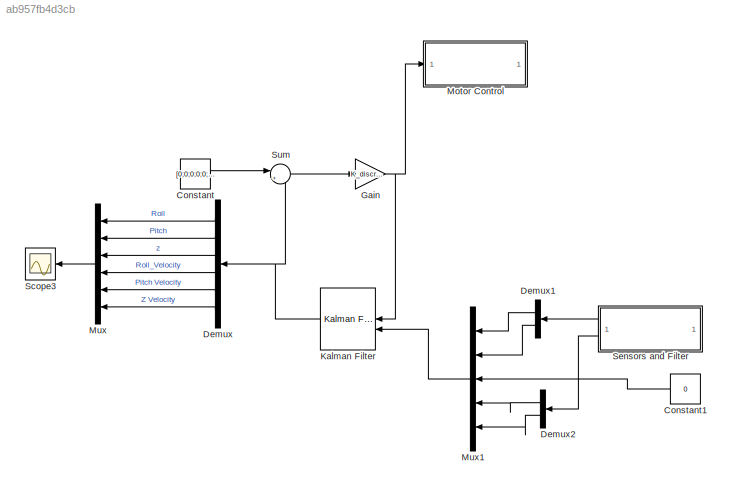
MODEL slx_ab957fb4d3cb
KIND model
CONFIG AbsTol = auto
CONFIG EnableMultiTasking = on
CONFIG FixedStep = 0.02
CONFIG InitFcn = Stages = 0;\n% Stage 0 means that it is initializing\n% Stage 1 means that 
CONFIG MaxStep = auto
CONFIG MinStep = auto
CONFIG RelTol = 1e-3
CONFIG SampleTimeConstraint = Unconstrained
CONFIG SolverName = FixedStepAuto
CONFIG StartTime = 0.0
CONFIG StopTime = inf
BLOCK [Constant] Constant
  Value = [0;0;0;0;0;0]
BLOCK [Constant] Constant1
  Value = 0
BLOCK [Demux] Demux
  Outputs = 6
BLOCK [Demux] Demux1
  Outputs = 2
BLOCK [Demux] Demux2
  Outputs = 2
BLOCK [Gain] Gain
  Gain = K_discrete
  Multiplication = Matrix(K*u)
BLOCK [Reference] Kalman Filter  REF=ctrlSharedLib/Kalman Filter
  LibrarySourceBlock = cstblocks/State Estimation/Kalman Filter
  SourceBlock = ctrlSharedLib/Kalman Filter
  SourceType = ctrlKalmanFilter
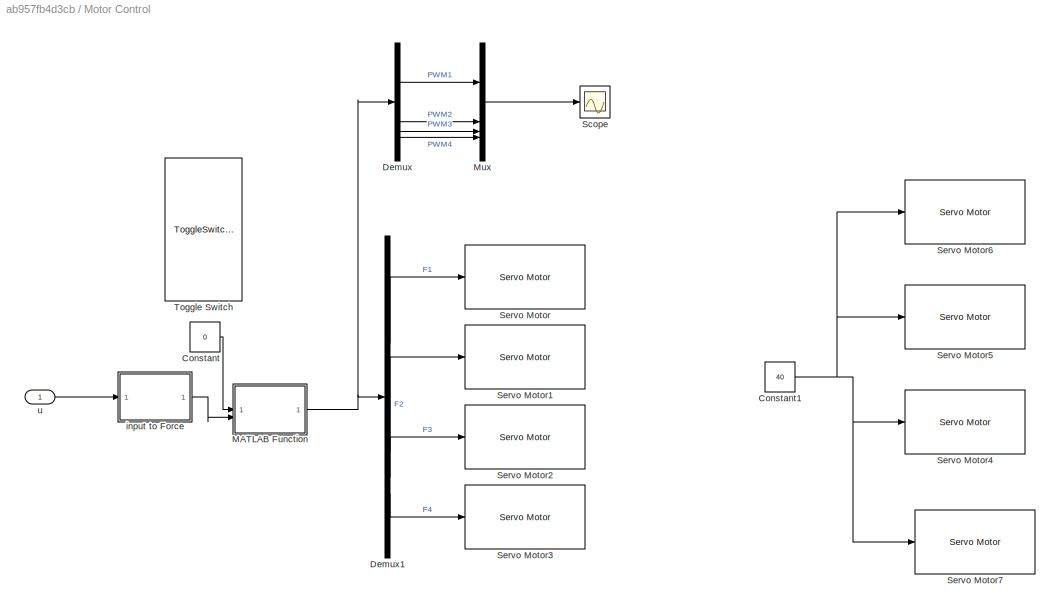
BLOCK [SubSystem] Motor Control
BLOCK [Constant] Motor Control/Constant
  Value = 0
BLOCK [Constant] Motor Control/Constant1
  Commented = on
  Value = 40
BLOCK [Demux] Motor Control/Demux
BLOCK [Demux] Motor Control/Demux1
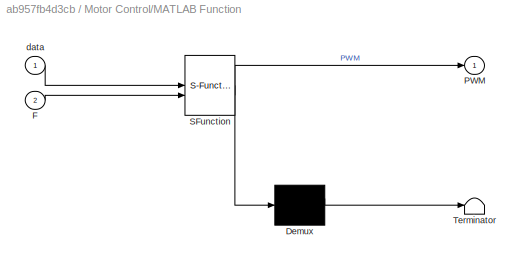
BLOCK [SubSystem] Motor Control/MATLAB Function
  ErrorFcn = Stateflow.Translate.translate
  PermitHierarchicalResolution = ExplicitOnly
  SFBlockType = MATLAB Function
  TreatAsAtomicUnit = on
BLOCK [Demux] Motor Control/MATLAB Function/ Demux 
  Outputs = 1
BLOCK [S-Function] Motor Control/MATLAB Function/ SFunction 
  EnableBusSupport = on
  FunctionName = sf_sfun
  PortCounts = [2 2]
  SFcnIsStateOwnerBlock = off
  SFunctionDeploymentMode = off
  Tag = Stateflow S-Function 1
BLOCK [Terminator] Motor Control/MATLAB Function/ Terminator 
BLOCK [Inport] Motor Control/MATLAB Function/F
  Port = 2
BLOCK [Outport] Motor Control/MATLAB Function/PWM
BLOCK [Inport] Motor Control/MATLAB Function/data
BLOCK [Mux] Motor Control/Mux
  DisplayOption = bar
BLOCK [Scope] Motor Control/Scope
  Floating = off
  NumInputPorts = 1
  ScopeSpecificationString = Simulink.scopes.TimeScopeBlockCfg('CurrentConfiguration', extmgr.ConfigurationSet(extmgr.Configuration('Core','General UI',true),extmgr.Configuration('Core','Source UI',true),extmgr.Configuration('Sources','WiredSimulink',true,'DataLoggingVariableName','ScopeData1'),extmgr.Configuration('Visuals','Time Domain',true,'SerializedDisplays',{struct('MinYLimReal','52.00000','MaxYLimReal','72.00000','YLa...<+1658ch>
BLOCK [Reference] Motor Control/Servo Motor  REF=bbblueActuatorLib/Servo Motor
  SourceBlock = bbblueActuatorLib/Servo Motor
  SourceType = beagleboneblue.bbblueServo
BLOCK [Reference] Motor Control/Servo Motor1  REF=bbblueActuatorLib/Servo Motor
  SourceBlock = bbblueActuatorLib/Servo Motor
  SourceType = beagleboneblue.bbblueServo
BLOCK [Reference] Motor Control/Servo Motor2  REF=bbblueActuatorLib/Servo Motor
  SourceBlock = bbblueActuatorLib/Servo Motor
  SourceType = beagleboneblue.bbblueServo
BLOCK [Reference] Motor Control/Servo Motor3  REF=bbblueActuatorLib/Servo Motor
  SourceBlock = bbblueActuatorLib/Servo Motor
  SourceType = beagleboneblue.bbblueServo
BLOCK [Reference] Motor Control/Servo Motor4  REF=bbblueActuatorLib/Servo Motor
  Commented = on
  SourceBlock = bbblueActuatorLib/Servo Motor
  SourceType = beagleboneblue.bbblueServo
BLOCK [Reference] Motor Control/Servo Motor5  REF=bbblueActuatorLib/Servo Motor
  Commented = on
  SourceBlock = bbblueActuatorLib/Servo Motor
  SourceType = beagleboneblue.bbblueServo
BLOCK [Reference] Motor Control/Servo Motor6  REF=bbblueActuatorLib/Servo Motor
  Commented = on
  SourceBlock = bbblueActuatorLib/Servo Motor
  SourceType = beagleboneblue.bbblueServo
BLOCK [Reference] Motor Control/Servo Motor7  REF=bbblueActuatorLib/Servo Motor
  Commented = on
  SourceBlock = bbblueActuatorLib/Servo Motor
  SourceType = beagleboneblue.bbblueServo
BLOCK [ToggleSwitchBlock] Motor Control/Toggle Switch
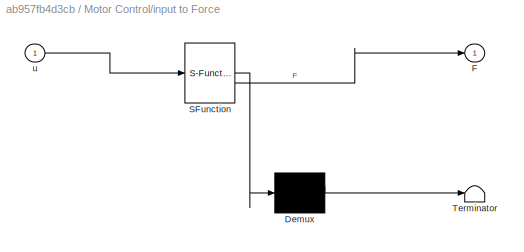
BLOCK [SubSystem] Motor Control/input to Force
  ErrorFcn = Stateflow.Translate.translate
  PermitHierarchicalResolution = ExplicitOnly
  SFBlockType = MATLAB Function
  TreatAsAtomicUnit = on
BLOCK [Demux] Motor Control/input to Force/ Demux 
  Outputs = 1
BLOCK [S-Function] Motor Control/input to Force/ SFunction 
  EnableBusSupport = on
  FunctionName = sf_sfun
  PortCounts = [1 2]
  SFcnIsStateOwnerBlock = off
  SFunctionDeploymentMode = off
  Tag = Stateflow S-Function 2
BLOCK [Terminator] Motor Control/input to Force/ Terminator 
BLOCK [Outport] Motor Control/input to Force/F
BLOCK [Inport] Motor Control/input to Force/u
BLOCK [Inport] Motor Control/u
BLOCK [Mux] Mux
  DisplayOption = bar
  Inputs = 6
BLOCK [Mux] Mux1
  DisplayOption = bar
  Inputs = 5
BLOCK [Scope] Scope3
  Floating = off
  NumInputPorts = 1
  ScopeSpecificationString = Simulink.scopes.TimeScopeBlockCfg('CurrentConfiguration', extmgr.ConfigurationSet(extmgr.Configuration('Core','General UI',true),extmgr.Configuration('Core','Source UI',true),extmgr.Configuration('Sources','WiredSimulink',true),extmgr.Configuration('Visuals','Time Domain',true,'SerializedDisplays',{struct('MinYLimReal','-0.00879','MaxYLimReal','0.01806','YLabelReal','','MinYLimMag','0.00000','MaxY...<+1627ch>
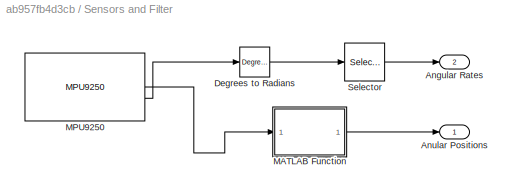
BLOCK [SubSystem] Sensors and Filter
BLOCK [Outport] Sensors and Filter/Angular Rates
  Port = 2
BLOCK [Outport] Sensors and Filter/Anular Positions
BLOCK [Reference] Sensors and Filter/Degrees to Radians  REF=simulink_extras/Transformations/Degrees to
Radians
  SourceBlock = simulink_extras/Transformations/Degrees to\nRadians
  SourceType = DegreesToRadians
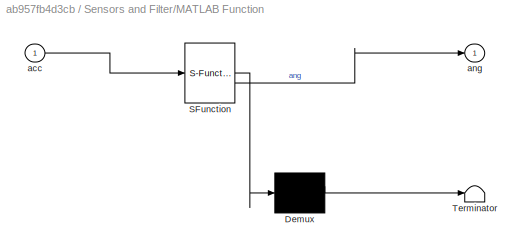
BLOCK [SubSystem] Sensors and Filter/MATLAB Function
  ErrorFcn = Stateflow.Translate.translate
  PermitHierarchicalResolution = ExplicitOnly
  SFBlockType = MATLAB Function
  TreatAsAtomicUnit = on
BLOCK [Demux] Sensors and Filter/MATLAB Function/ Demux 
  Outputs = 1
BLOCK [S-Function] Sensors and Filter/MATLAB Function/ SFunction 
  EnableBusSupport = on
  FunctionName = sf_sfun
  PortCounts = [1 2]
  SFcnIsStateOwnerBlock = off
  SFunctionDeploymentMode = off
  Tag = Stateflow S-Function 3
BLOCK [Terminator] Sensors and Filter/MATLAB Function/ Terminator 
BLOCK [Inport] Sensors and Filter/MATLAB Function/acc
BLOCK [Outport] Sensors and Filter/MATLAB Function/ang
BLOCK [Reference] Sensors and Filter/MPU9250  REF=bbblueSensorLib/MPU9250
  SourceBlock = bbblueSensorLib/MPU9250
  SourceType = beagleboneblue.bbblueMPU9250
BLOCK [Selector] Sensors and Filter/Selector
  IndexOptions = Index vector (dialog)
  Indices = [1 2]
  InputPortWidth = 3
  OutputSizes = 1
BLOCK [Sum] Sum
  Inputs = |+-
LINE Constant1:1 -> Mux1:3
LINE Constant:1 -> Sum:1
LINE Demux1:1 -> Mux1:1
LINE Demux1:2 -> Mux1:2
LINE Demux2:1 -> Mux1:4
LINE Demux2:2 -> Mux1:5
LINE Demux:1 -> Mux:1
LINE Demux:2 -> Mux:2
LINE Demux:3 -> Mux:3
LINE Demux:4 -> Mux:4
LINE Demux:5 -> Mux:5
LINE Demux:6 -> Mux:6
NET Gain:1 -> Kalman Filter:1, Motor Control:1
NET Kalman Filter:1 -> Demux:1, Sum:2
NET Motor Control/Constant1:1 -> Motor Control/Servo Motor4:1, Motor Control/Servo Motor5:1, Motor Control/Servo Motor6:1, Motor Control/Servo Motor7:1
LINE Motor Control/Constant:1 -> Motor Control/MATLAB Function:1
LINE Motor Control/Demux1:1 -> Motor Control/Servo Motor:1
LINE Motor Control/Demux1:2 -> Motor Control/Servo Motor1:1
LINE Motor Control/Demux1:3 -> Motor Control/Servo Motor2:1
LINE Motor Control/Demux1:4 -> Motor Control/Servo Motor3:1
LINE Motor Control/Demux:1 -> Motor Control/Mux:1
LINE Motor Control/Demux:2 -> Motor Control/Mux:2
LINE Motor Control/Demux:3 -> Motor Control/Mux:3
LINE Motor Control/Demux:4 -> Motor Control/Mux:4
NET Motor Control/MATLAB Function:1 -> Motor Control/Demux1:1, Motor Control/Demux:1
LINE Motor Control/Mux:1 -> Motor Control/Scope:1
LINE Motor Control/input to Force:1 -> Motor Control/MATLAB Function:2
LINE Motor Control/u:1 -> Motor Control/input to Force:1
LINE Mux1:1 -> Kalman Filter:2
LINE Mux:1 -> Scope3:1
LINE Sensors and Filter/Degrees to Radians:1 -> Sensors and Filter/Selector:1
LINE Sensors and Filter/MATLAB Function:1 -> Sensors and Filter/Anular Positions:1
LINE Sensors and Filter/MPU9250:1 -> Sensors and Filter/MATLAB Function:1
LINE Sensors and Filter/MPU9250:2 -> Sensors and Filter/Degrees to Radians:1
LINE Sensors and Filter/Selector:1 -> Sensors and Filter/Angular Rates:1
LINE Sensors and Filter:1 -> Demux1:1
LINE Sensors and Filter:2 -> Demux2:1
LINE Sum:1 -> Gain:1
note: NET lines group one-source signal fan-out (src -> all destinations, sorted); 1:1 wires keep LINE
CHART Motor Control/input to Force states=1 transitions=1
  STATE_LABEL 'eML_blk_kernel()'
  STATE_LABEL 'SCRIPT:\nfunction F = fcn(u)\n\nL=0.175;\nc=0.0144;\nm=1.271;\ng=9.81;\nT = [1 1 1 1;\n    -L L -L L;\n    -L -L L L;\n    c -c -c c;];\nM = [-m*g;0;0;0];\n\n\n\nF = T\\(u-M); % Getting the Force Vector [F1;F2;F3;F4]\n\nend\n'
CHART Sensors and Filter/MATLAB Function states=1 transitions=1
  STATE_LABEL 'eML_blk_kernel()'
  STATE_LABEL 'SCRIPT:\nfunction ang = fcn(acc) % defining function for inputs , coming throuh fcn(acc)\n\nacc_x = acc(1); % declaring accel x\nacc_y = acc(2); % declaring accel y\nacc_z = acc(3); % declaring acceleromoter z\n\npitch = atan(acc_x/acc_z); %pitch\nroll  = atan(acc_y/acc_z); %roll\n\nang = zeros(2,1)\nang(1) = pitch\nang(2) = roll\n\nend'
CHART Motor Control/MATLAB Function states=1 transitions=1
  STATE_LABEL 'eML_blk_kernel()'
  STATE_LABEL 'SCRIPT:\nfunction PWM = fcn(data, F)\n\nPWM =zeros(4,1);\ng=9.81;\n\nif data == 0\n    for i=1:4\n        PWM(i)=40;\n    end \nelseif data == 1\n    for i=1:4\n        PWM(i)= (2.1999e-2*(F^3))-(6.1362*(F^2))*(9.4193*(F^1))*(2.8635);\n        PWM(i) = round(PWM(i));\n        \n        if PWM(i) > 65\n            PWM(i) = 65;\n        end\n        if PWM(i) <45\n            PWM(i) = 45;\n        end\n    end\nend    \n\n...<+7ch>'
CHART  states=0 transitions=0
CHART  states=0 transitions=0
CHART  states=0 transitions=0
